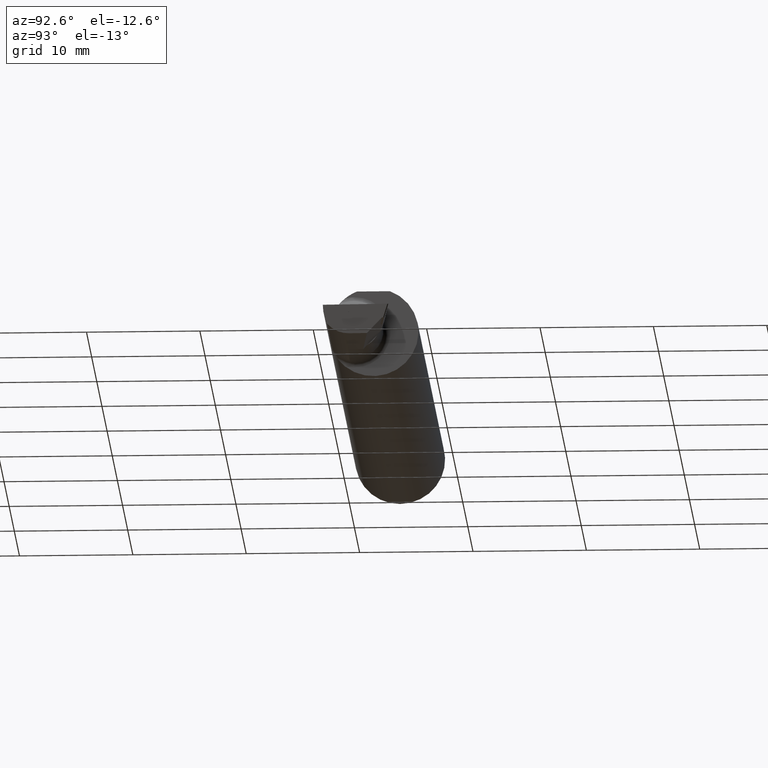
[diagram: clean part render]
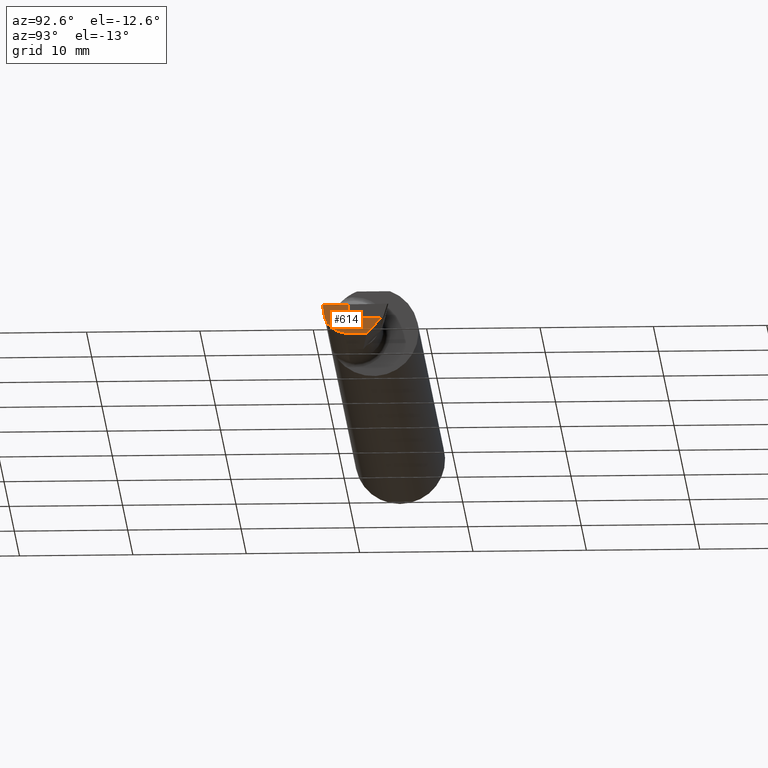
[diagram: same view with one face highlighted and labeled with its STEP entity id]
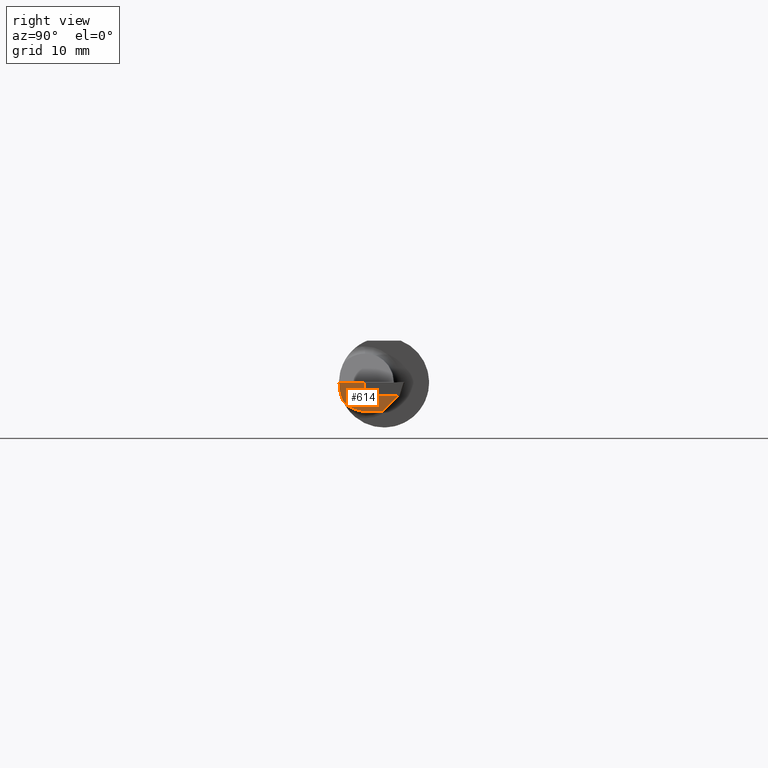
[diagram: same view with one face highlighted and labeled with its STEP entity id]
A machine part, auxiliary view. The second image highlights one B-rep face of the part: STEP entity #614.
A second angle (right view) of the same face is appended — the face is thin or edge-on in the first view.
In plain terms, the highlighted planar face has unit normal (-0.9922, 0.0262, 0.1218).
Its self-contained STEP definition (entity closure, byte-faithful):
#8 = CARTESIAN_POINT ( 'NONE',  ( 63.09565101948187760, -1.678939999999999433, -2.540000000000000480 ) ) ;
#13 = ORIENTED_EDGE ( 'NONE', *, *, #728, .F. ) ;
#23 = ORIENTED_EDGE ( 'NONE', *, *, #1191, .T. ) ;
#30 = VECTOR ( 'NONE', #89, 1000.000000000000114 ) ;
#35 = CARTESIAN_POINT ( 'NONE',  ( 63.34721324168081225, -3.964939999999998577, -1.734723475976807094E-15 ) ) ;
#41 = DIRECTION ( 'NONE',  ( 0.1179523509429967060, -0.1179523509429979550, 0.9859890901090335724 ) ) ;
#67 = ORIENTED_EDGE ( 'NONE', *, *, #290, .T. ) ;
#74 = VECTOR ( 'NONE', #41, 1000.000000000000000 ) ;
#88 = VERTEX_POINT ( 'NONE', #689 ) ;
#89 = DIRECTION ( 'NONE',  ( 0.02637339639456100920, 0.9996521614854915194, -0.000000000000000000 ) ) ;
#127 = ORIENTED_EDGE ( 'NONE', *, *, #446, .F. ) ;
#148 = ORIENTED_EDGE ( 'NONE', *, *, #484, .T. ) ;
#161 = LINE ( 'NONE', #1033, #635 ) ;
#189 = VERTEX_POINT ( 'NONE', #1100 ) ;
#213 = DIRECTION ( 'NONE',  ( -0.9922060308645493931, 0.02617694830787857529, 0.1218275818249038300 ) ) ;
#220 = CARTESIAN_POINT ( 'NONE',  ( 62.59053562196749709, -3.704370615377566622, -6.218632904496906200 ) ) ;
#235 = DIRECTION ( 'NONE',  ( 0.1054163440777188543, 0.6976459289133479791, 0.7086448703489779399 ) ) ;
#247 =( BOUNDED_CURVE ( )  B_SPLINE_CURVE ( 3, ( #710, #904, #525, #35 ),
 .UNSPECIFIED., .F., .F. ) 
 B_SPLINE_CURVE_WITH_KNOTS ( ( 4, 4 ),
 ( 0.9266671109708575216, 1.359145557743733246 ),
 .UNSPECIFIED. ) 
 CURVE ( )  GEOMETRIC_REPRESENTATION_ITEM ( )  RATIONAL_B_SPLINE_CURVE ( ( 1.000000000000000000, 0.9844741726620815925, 0.9844741726620815925, 1.000000000000000000 ) ) 
 REPRESENTATION_ITEM ( '' )  );
#250 = VECTOR ( 'NONE', #235, 1000.000000000000000 ) ;
#261 = CARTESIAN_POINT ( 'NONE',  ( 63.15280151554064503, -3.599887049924355598, -1.661794942640913542 ) ) ;
#263 = EDGE_LOOP ( 'NONE', ( #127, #67, #584, #13, #148, #23, #423 ) ) ;
#289 = CARTESIAN_POINT ( 'NONE',  ( 63.13776040016294644, -0.08283410651225252275, -2.540000000000001368 ) ) ;
#290 = EDGE_CURVE ( 'NONE', #524, #189, #618, .T. ) ;
#311 = FACE_OUTER_BOUND ( 'NONE', #263, .T. ) ;
#340 = EDGE_CURVE ( 'NONE', #88, #189, #161, .T. ) ;
#352 = CARTESIAN_POINT ( 'NONE',  ( 63.09565101948187760, -1.678939999999999433, -2.540000000000000480 ) ) ;
#357 = LINE ( 'NONE', #364, #30 ) ;
#362 = DIRECTION ( 'NONE',  ( 0.02637339639456100920, 0.9996521614854915194, -0.000000000000000000 ) ) ;
#364 = CARTESIAN_POINT ( 'NONE',  ( 63.18735456327720357, 1.796973545582666087, -2.540000000000002256 ) ) ;
#418 = CARTESIAN_POINT ( 'NONE',  ( 61.98935687658298122, -0.3460968765829873783, -11.83642917534371009 ) ) ;
#420 = VERTEX_POINT ( 'NONE', #352 ) ;
#423 = ORIENTED_EDGE ( 'NONE', *, *, #801, .T. ) ;
#446 = EDGE_CURVE ( 'NONE', #524, #847, #654, .T. ) ;
#461 = VERTEX_POINT ( 'NONE', #261 ) ;
#464 = CARTESIAN_POINT ( 'NONE',  ( 63.33801794570552346, 1.242471400942626536, -1.193800000000000416 ) ) ;
#484 = EDGE_CURVE ( 'NONE', #461, #420, #947, .T. ) ;
#505 = CARTESIAN_POINT ( 'NONE',  ( 62.07728640889369132, 1.826260000000001327, -11.58707235375900524 ) ) ;
#524 = VERTEX_POINT ( 'NONE', #967 ) ;
#525 = CARTESIAN_POINT ( 'NONE',  ( 63.27647904615622565, -3.964940000000000353, -0.5760837926561040989 ) ) ;
#584 = ORIENTED_EDGE ( 'NONE', *, *, #340, .F. ) ;
#614 = ADVANCED_FACE ( 'NONE', ( #311 ), #692, .F. ) ;
#618 = LINE ( 'NONE', #418, #74 ) ;
#635 = VECTOR ( 'NONE', #642, 1000.000000000000114 ) ;
#642 = DIRECTION ( 'NONE',  ( 0.02637339639456100920, 0.9996521614854915194, 0.000000000000000000 ) ) ;
#654 = LINE ( 'NONE', #1025, #1199 ) ;
#689 = CARTESIAN_POINT ( 'NONE',  ( 63.34721324168081225, -3.964939999999998577, -1.734723475976807094E-15 ) ) ;
#692 = PLANE ( 'NONE',  #1144 ) ;
#710 = CARTESIAN_POINT ( 'NONE',  ( 63.15280151554064503, -3.599887049924355598, -1.661794942640913542 ) ) ;
#728 = EDGE_CURVE ( 'NONE', #461, #88, #247, .T. ) ;
#751 = CARTESIAN_POINT ( 'NONE',  ( 63.09615684788646917, -3.109668751225285632, -2.228461364918259413 ) ) ;
#801 = EDGE_CURVE ( 'NONE', #1026, #847, #1084, .T. ) ;
#847 = VERTEX_POINT ( 'NONE', #464 ) ;
#904 = CARTESIAN_POINT ( 'NONE',  ( 63.21065313572312050, -3.841336638864746522, -1.138751319066780843 ) ) ;
#947 =( BOUNDED_CURVE ( )  B_SPLINE_CURVE ( 3, ( #1232, #751, #1156, #8 ),
 .UNSPECIFIED., .F., .T. ) 
 B_SPLINE_CURVE_WITH_KNOTS ( ( 4, 4 ),
 ( 5.637230215764978958, 6.494836076230749988 ),
 .UNSPECIFIED. ) 
 CURVE ( )  GEOMETRIC_REPRESENTATION_ITEM ( )  RATIONAL_B_SPLINE_CURVE ( ( 1.000000000000000000, 0.9396427478180651160, 0.9396427478180651160, 1.000000000000000000 ) ) 
 REPRESENTATION_ITEM ( '' )  );
#967 = CARTESIAN_POINT ( 'NONE',  ( 63.26251815599176354, -1.619258155991781356, -1.193799999999999972 ) ) ;
#1025 = CARTESIAN_POINT ( 'NONE',  ( 63.35253216891558026, 1.792615735299405655, -1.193799999999999972 ) ) ;
#1026 = VERTEX_POINT ( 'NONE', #289 ) ;
#1033 = CARTESIAN_POINT ( 'NONE',  ( 63.56374090757875450, 4.242283142520748562, -8.673617379884035472E-16 ) ) ;
#1056 = DIRECTION ( 'NONE',  ( 0.1218693434051340146, 0.000000000000000000, 0.9925461516413237595 ) ) ;
#1084 = LINE ( 'NONE', #220, #250 ) ;
#1100 = CARTESIAN_POINT ( 'NONE',  ( 63.40533060490047035, -1.762070604900496162, 0.000000000000000000 ) ) ;
#1144 = AXIS2_PLACEMENT_3D ( 'NONE', #505, #213, #1056 ) ;
#1156 = CARTESIAN_POINT ( 'NONE',  ( 63.07588300934818903, -2.428222866824016890, -2.540000000000000480 ) ) ;
#1191 = EDGE_CURVE ( 'NONE', #420, #1026, #357, .T. ) ;
#1199 = VECTOR ( 'NONE', #362, 1000.000000000000227 ) ;
#1232 = CARTESIAN_POINT ( 'NONE',  ( 63.15280151554064503, -3.599887049924355598, -1.661794942640913542 ) ) ;